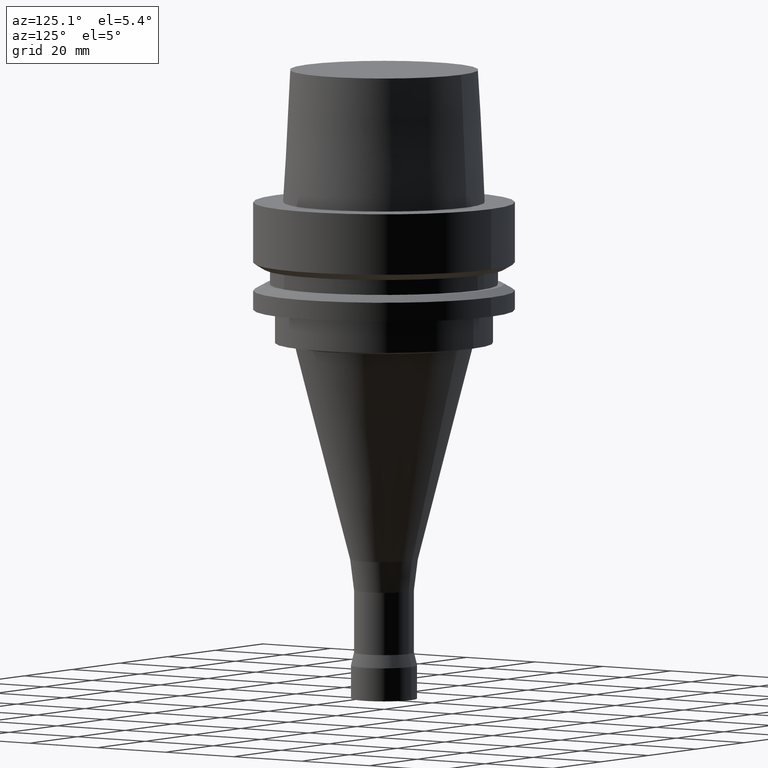
[diagram: clean part render]
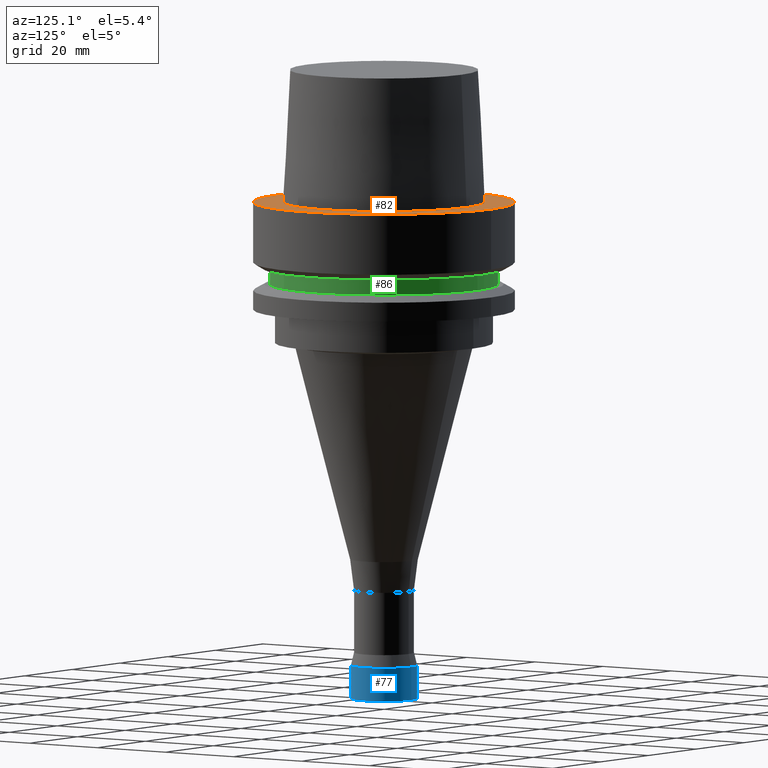
[diagram: same view with three faces highlighted in distinct colors, each labeled with its STEP entity id]
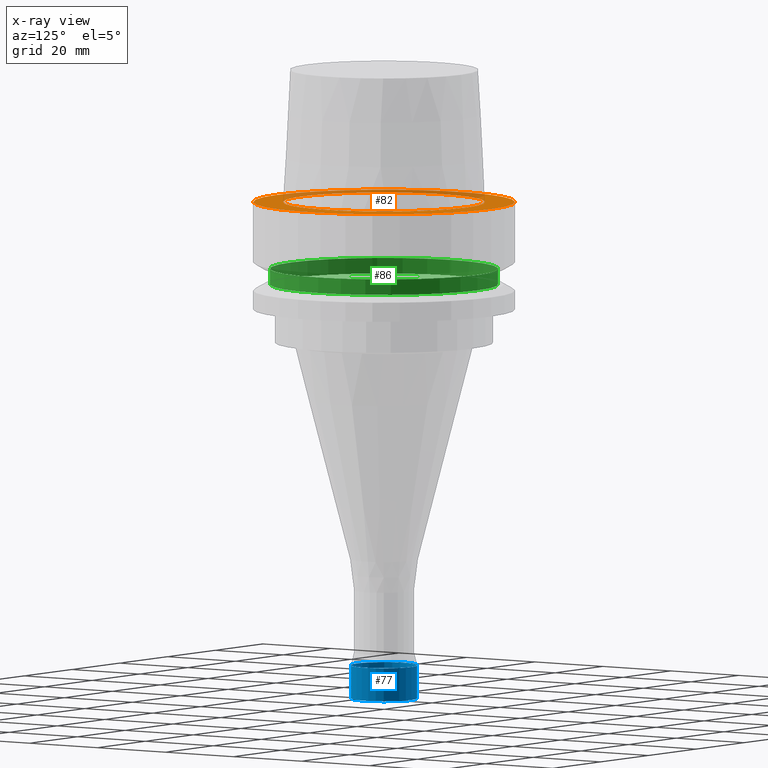
[diagram: x-ray of the same camera — body ghosted, the three highlighted faces saturated]
A machine part, auxiliary view with three faces highlighted in distinct colors.
The next image is the same camera in x-ray (body ghosted, the three faces saturated) — at least one of them is partly hidden behind the body in this view.
Their STEP definitions:

[orange] entity #82 — the highlighted planar face has unit normal (-0, -0, 1).
#82=ADVANCED_FACE('',(#115,#116),#117,.T.);
#115=FACE_OUTER_BOUND('',#173,.T.);
#116=FACE_BOUND('',#174,.T.);
#117=PLANE('',#175);
#173=EDGE_LOOP('',(#245));
#174=EDGE_LOOP('',(#246));
#175=AXIS2_PLACEMENT_3D('',#247,#248,#249);
#245=ORIENTED_EDGE('',*,*,#317,.F.);
#246=ORIENTED_EDGE('',*,*,#316,.T.);
#247=CARTESIAN_POINT('',(-3.43986495508397E-031,27.907500000104,3.41768305473321E-015));
#248=DIRECTION('',(-6.12323399573677E-017,-1.22464679914735E-016,1.0));
#249=DIRECTION('',(1.23259516440783E-032,-1.0,-1.22464679914735E-016));
#316=EDGE_CURVE('',#341,#341,#342,.T.);
#317=EDGE_CURVE('',#343,#343,#344,.T.);
#341=VERTEX_POINT('',#379);
#342=CIRCLE('',#380,24.3150000002079);
#343=VERTEX_POINT('',#381);
#344=CIRCLE('',#382,31.5);
#379=CARTESIAN_POINT('',(-2.99705514228327E-031,24.3150000002079,2.97772869215225E-015));
#380=AXIS2_PLACEMENT_3D('',#423,#424,#425);
#381=CARTESIAN_POINT('',(-3.88267476788467E-031,31.5,3.85763741731416E-015));
#382=AXIS2_PLACEMENT_3D('',#426,#427,#428);
#423=CARTESIAN_POINT('',(0.0,0.0,0.0));
#424=DIRECTION('',(6.12323399573677E-017,1.22464679914735E-016,-1.0));
#425=DIRECTION('',(-1.23259516440783E-032,1.0,1.22464679914735E-016));
#426=CARTESIAN_POINT('',(0.0,0.0,0.0));
#427=DIRECTION('',(6.12323399573677E-017,1.22464679914735E-016,-1.0));
#428=DIRECTION('',(-1.23259516440783E-032,1.0,1.22464679914735E-016));

[blue] entity #77 — the highlighted cylindrical surface (bore or boss wall) has radius 8 mm, axis along (-0, -0, 1).
#77=ADVANCED_FACE('',(#102,#103),#104,.T.);
#102=FACE_BOUND('',#160,.T.);
#103=FACE_BOUND('',#161,.T.);
#104=CYLINDRICAL_SURFACE('',#162,8.0);
#160=EDGE_LOOP('',(#222));
#161=EDGE_LOOP('',(#223));
#162=AXIS2_PLACEMENT_3D('',#224,#225,#226);
#222=ORIENTED_EDGE('',*,*,#313,.F.);
#223=ORIENTED_EDGE('',*,*,#312,.T.);
#224=CARTESIAN_POINT('',(7.10295143505465E-015,1.42059028701093E-014,-116.0));
#225=DIRECTION('',(-6.12323399573677E-017,-1.22464679914735E-016,1.0));
#226=DIRECTION('',(-1.23259516440783E-032,1.0,1.22464679914735E-016));
#312=EDGE_CURVE('',#333,#333,#334,.T.);
#313=EDGE_CURVE('',#335,#335,#336,.T.);
#333=VERTEX_POINT('',#371);
#334=CIRCLE('',#372,8.0);
#335=VERTEX_POINT('',#373);
#336=CIRCLE('',#374,8.0);
#371=CARTESIAN_POINT('',(6.85802207522518E-015,8.00000000000001,-112.0));
#372=AXIS2_PLACEMENT_3D('',#411,#412,#413);
#373=CARTESIAN_POINT('',(7.34788079488412E-015,8.00000000000001,-120.0));
#374=AXIS2_PLACEMENT_3D('',#414,#415,#416);
#411=CARTESIAN_POINT('',(6.85802207522518E-015,1.37160441504504E-014,-112.0));
#412=DIRECTION('',(6.12323399573677E-017,1.22464679914735E-016,-1.0));
#413=DIRECTION('',(-1.23259516440783E-032,1.0,1.22464679914735E-016));
#414=CARTESIAN_POINT('',(7.34788079488412E-015,1.46957615897682E-014,-120.0));
#415=DIRECTION('',(6.12323399573677E-017,1.22464679914735E-016,-1.0));
#416=DIRECTION('',(-1.23259516440783E-032,1.0,1.22464679914735E-016));

[green] entity #86 — the highlighted cylindrical surface (bore or boss wall) has radius 27.5 mm, axis along (-0, -0, 1).
#86=ADVANCED_FACE('',(#127,#128),#129,.T.);
#127=FACE_BOUND('',#185,.T.);
#128=FACE_BOUND('',#186,.T.);
#129=CYLINDRICAL_SURFACE('',#187,27.5);
#185=EDGE_LOOP('',(#265));
#186=EDGE_LOOP('',(#266));
#187=AXIS2_PLACEMENT_3D('',#267,#268,#269);
#265=ORIENTED_EDGE('',*,*,#321,.F.);
#266=ORIENTED_EDGE('',*,*,#320,.T.);
#267=CARTESIAN_POINT('',(1.10218211923262E-015,2.20436423846524E-015,-18.0));
#268=DIRECTION('',(-6.12323399573677E-017,-1.22464679914735E-016,1.0));
#269=DIRECTION('',(-1.23259516440783E-032,1.0,1.22464679914735E-016));
#320=EDGE_CURVE('',#349,#349,#350,.T.);
#321=EDGE_CURVE('',#351,#351,#352,.T.);
#349=VERTEX_POINT('',#387);
#350=CIRCLE('',#388,27.5);
#351=VERTEX_POINT('',#389);
#352=CIRCLE('',#390,27.5);
#387=CARTESIAN_POINT('',(9.87371481812553E-016,27.5,-16.125));
#388=AXIS2_PLACEMENT_3D('',#435,#436,#437);
#389=CARTESIAN_POINT('',(1.21699275665268E-015,27.5,-19.875));
#390=AXIS2_PLACEMENT_3D('',#438,#439,#440);
#435=CARTESIAN_POINT('',(9.87371481812554E-016,1.97474296362511E-015,-16.125));
#436=DIRECTION('',(6.12323399573677E-017,1.22464679914735E-016,-1.0));
#437=DIRECTION('',(-1.23259516440783E-032,1.0,1.22464679914735E-016));
#438=CARTESIAN_POINT('',(1.21699275665268E-015,2.43398551330536E-015,-19.875));
#439=DIRECTION('',(6.12323399573677E-017,1.22464679914735E-016,-1.0));
#440=DIRECTION('',(-1.23259516440783E-032,1.0,1.22464679914735E-016));